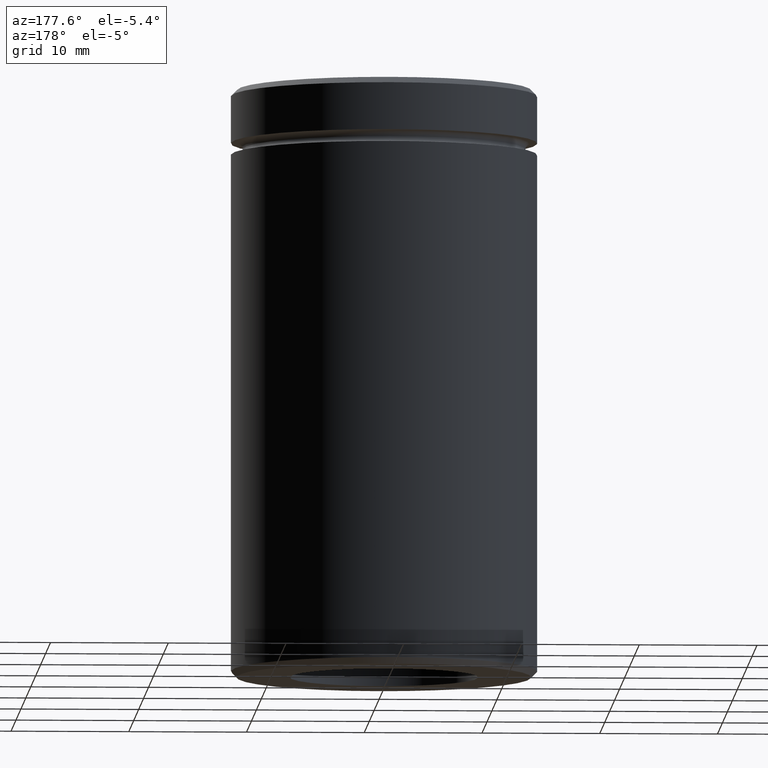
[diagram: clean part render]
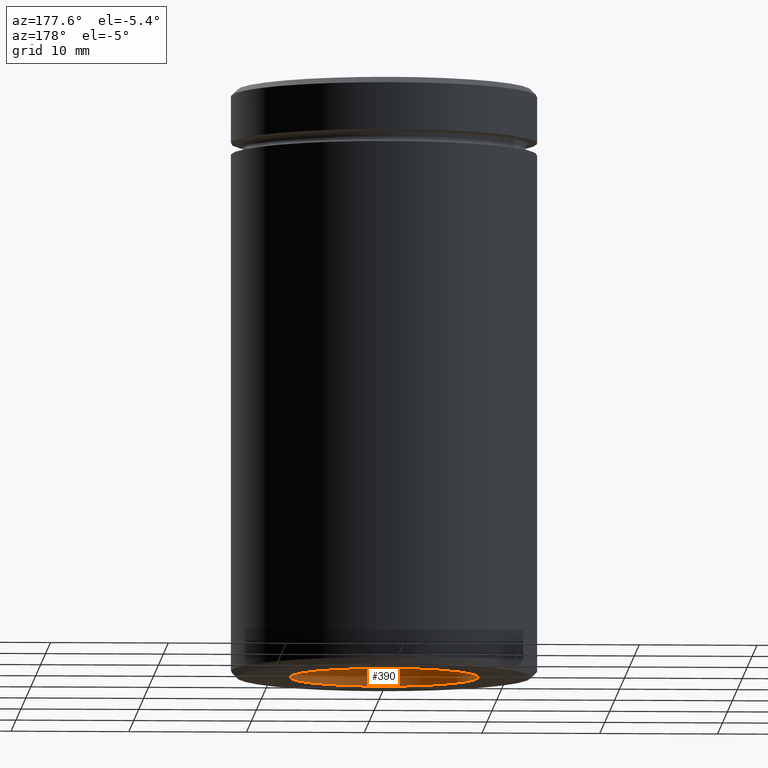
[diagram: same view with one face highlighted and labeled with its STEP entity id]
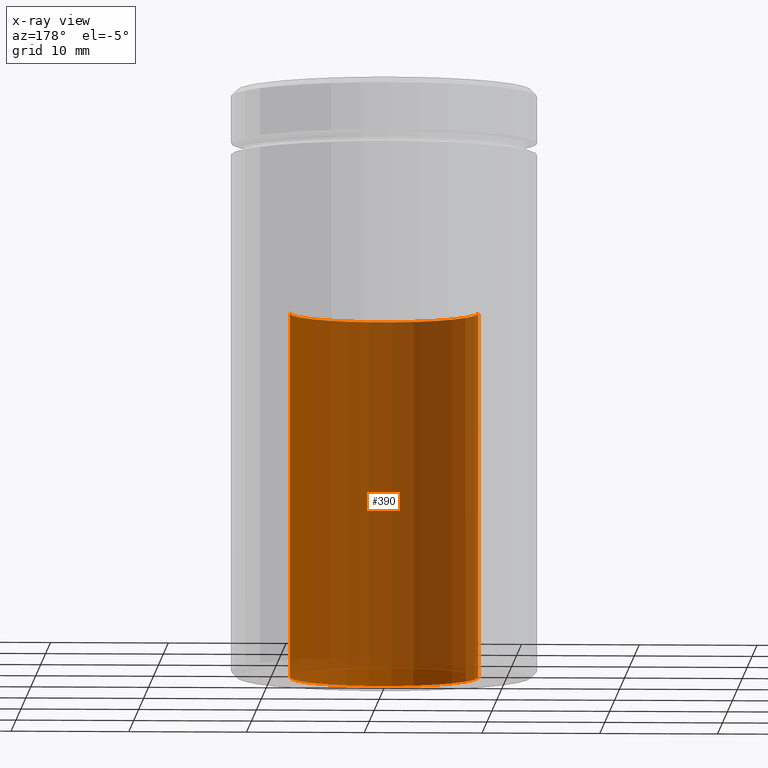
[diagram: x-ray of the same camera — body ghosted, the highlighted face saturated]
A machine part, auxiliary view. The second image highlights one B-rep face of the part: STEP entity #390.
The next image is the same camera in x-ray: the body ghosted, the highlighted face saturated — about 96% of this face is hidden behind the body in this view.
In plain terms, the highlighted cylindrical surface (partial cylindrical patch) has radius 8 mm, axis along (-0, -0, -1).
Its self-contained STEP definition (entity closure, byte-faithful):
#14 = VECTOR ( 'NONE', #238, 1000.000000000000000 ) ;
#31 = AXIS2_PLACEMENT_3D ( 'NONE', #467, #336, #41 ) ;
#41 = DIRECTION ( 'NONE',  ( -1.000000000000000000, 0.000000000000000000, 0.000000000000000000 ) ) ;
#58 = FACE_OUTER_BOUND ( 'NONE', #548, .T. ) ;
#59 = ORIENTED_EDGE ( 'NONE', *, *, #107, .T. ) ;
#97 = DIRECTION ( 'NONE',  ( -0.000000000000000000, -0.000000000000000000, -1.000000000000000000 ) ) ;
#107 = EDGE_CURVE ( 'NONE', #167, #455, #265, .T. ) ;
#119 = VECTOR ( 'NONE', #517, 1000.000000000000000 ) ;
#126 = VERTEX_POINT ( 'NONE', #299 ) ;
#149 = AXIS2_PLACEMENT_3D ( 'NONE', #348, #97, #240 ) ;
#165 = CARTESIAN_POINT ( 'NONE',  ( -8.000000000000000000, 0.000000000000000000, -50.00000000000000000 ) ) ;
#167 = VERTEX_POINT ( 'NONE', #185 ) ;
#170 = VERTEX_POINT ( 'NONE', #540 ) ;
#185 = CARTESIAN_POINT ( 'NONE',  ( 8.000000000000000000, 9.797174393178825657E-16, -50.00000000000000000 ) ) ;
#194 = CARTESIAN_POINT ( 'NONE',  ( 0.000000000000000000, 0.000000000000000000, -19.00000000000000355 ) ) ;
#204 = DIRECTION ( 'NONE',  ( 0.000000000000000000, 0.000000000000000000, -1.000000000000000000 ) ) ;
#232 = LINE ( 'NONE', #539, #14 ) ;
#238 = DIRECTION ( 'NONE',  ( -0.000000000000000000, -0.000000000000000000, -1.000000000000000000 ) ) ;
#240 = DIRECTION ( 'NONE',  ( -1.000000000000000000, 0.000000000000000000, 0.000000000000000000 ) ) ;
#265 = CIRCLE ( 'NONE', #31, 8.000000000000000000 ) ;
#299 = CARTESIAN_POINT ( 'NONE',  ( -8.000000000000000000, 0.000000000000000000, -19.00000000000000355 ) ) ;
#310 = ORIENTED_EDGE ( 'NONE', *, *, #398, .F. ) ;
#311 = CYLINDRICAL_SURFACE ( 'NONE', #149, 8.000000000000000000 ) ;
#325 = ORIENTED_EDGE ( 'NONE', *, *, #545, .T. ) ;
#335 = LINE ( 'NONE', #386, #119 ) ;
#336 = DIRECTION ( 'NONE',  ( 0.000000000000000000, 0.000000000000000000, -1.000000000000000000 ) ) ;
#348 = CARTESIAN_POINT ( 'NONE',  ( 0.000000000000000000, 0.000000000000000000, -19.00000000000000355 ) ) ;
#386 = CARTESIAN_POINT ( 'NONE',  ( 8.000000000000000000, 9.797174393178825657E-16, -19.00000000000000355 ) ) ;
#388 = CIRCLE ( 'NONE', #537, 8.000000000000000000 ) ;
#390 = ADVANCED_FACE ( 'NONE', ( #58 ), #311, .F. ) ;
#398 = EDGE_CURVE ( 'NONE', #126, #455, #232, .T. ) ;
#439 = EDGE_CURVE ( 'NONE', #170, #126, #388, .T. ) ;
#455 = VERTEX_POINT ( 'NONE', #165 ) ;
#467 = CARTESIAN_POINT ( 'NONE',  ( 0.000000000000000000, 0.000000000000000000, -50.00000000000000000 ) ) ;
#492 = DIRECTION ( 'NONE',  ( -1.000000000000000000, 0.000000000000000000, 0.000000000000000000 ) ) ;
#517 = DIRECTION ( 'NONE',  ( -0.000000000000000000, -0.000000000000000000, -1.000000000000000000 ) ) ;
#537 = AXIS2_PLACEMENT_3D ( 'NONE', #194, #204, #492 ) ;
#539 = CARTESIAN_POINT ( 'NONE',  ( -8.000000000000000000, 0.000000000000000000, -19.00000000000000355 ) ) ;
#540 = CARTESIAN_POINT ( 'NONE',  ( 8.000000000000000000, 9.797174393178825657E-16, -19.00000000000000355 ) ) ;
#545 = EDGE_CURVE ( 'NONE', #170, #167, #335, .T. ) ;
#548 = EDGE_LOOP ( 'NONE', ( #550, #325, #59, #310 ) ) ;
#550 = ORIENTED_EDGE ( 'NONE', *, *, #439, .F. ) ;